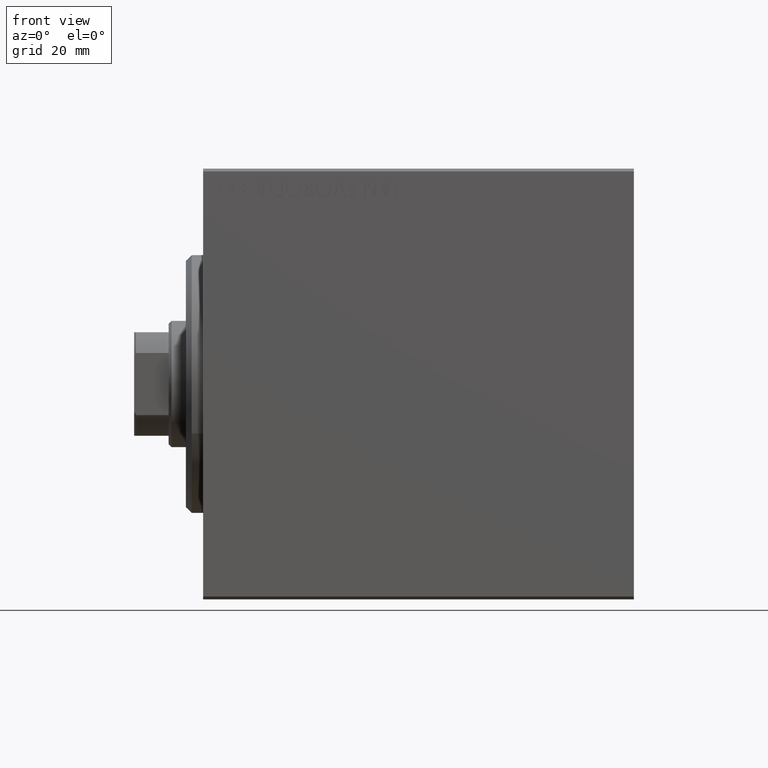
[diagram: clean part render]
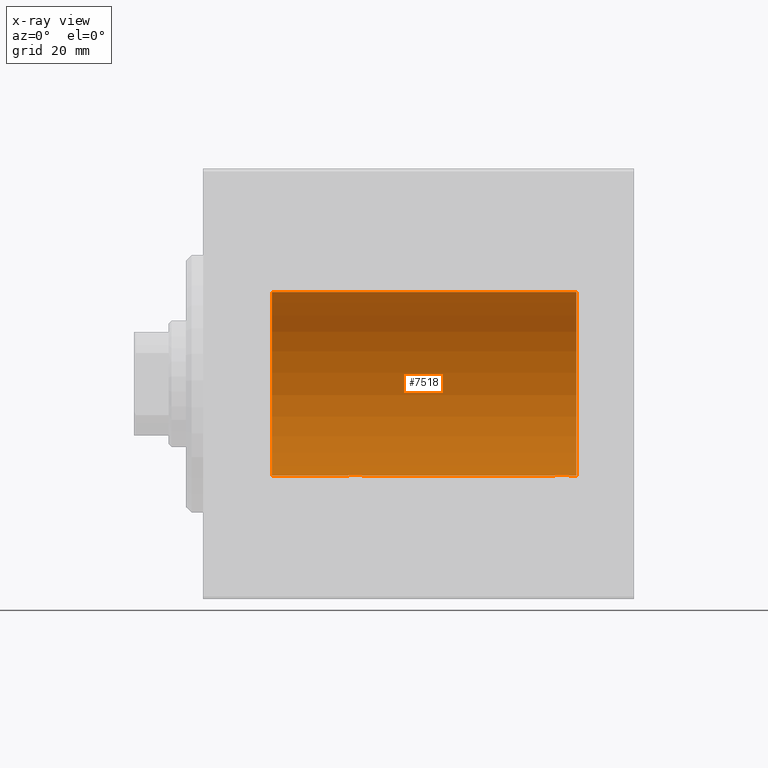
[diagram: x-ray — body ghosted, one internal face saturated and labeled with its STEP entity id]
A machine part, front view, then the same camera in x-ray: the body is ghosted and one INTERNAL B-rep face — a face not visible from any outside direction — is saturated and labeled: STEP entity #7518.
In plain terms, the highlighted cylindrical surface (partial cylindrical patch) has radius 16 mm, axis along (-1, -0, -0).
Its self-contained STEP definition (entity closure, byte-faithful):
#26 = CARTESIAN_POINT ( 'NONE',  ( 28.48690924832125759, 0.2632563459770846381, -15.99834873924246814 ) ) ;
#37 = ORIENTED_EDGE ( 'NONE', *, *, #7482, .T. ) ;
#222 = CARTESIAN_POINT ( 'NONE',  ( 60.60241129944407845, 0.6452446332038094257, -15.98744362947834929 ) ) ;
#434 = CARTESIAN_POINT ( 'NONE',  ( 60.76431901501735666, 1.002241074716276437, -15.96895041604536125 ) ) ;
#659 = EDGE_CURVE ( 'NONE', #16221, #37139, #8265, .T. ) ;
#693 = CIRCLE ( 'NONE', #25565, 16.00000000000000000 ) ;
#805 = ORIENTED_EDGE ( 'NONE', *, *, #23228, .F. ) ;
#2175 = DIRECTION ( 'NONE',  ( -1.000000000000000000, -0.000000000000000000, -0.000000000000000000 ) ) ;
#2396 = LINE ( 'NONE', #9743, #30644 ) ;
#2463 = CARTESIAN_POINT ( 'NONE',  ( 24.56388673317935556, 0.5181437283162043661, -15.99211983514074653 ) ) ;
#2921 = CARTESIAN_POINT ( 'NONE',  ( 24.70286585251780664, 0.8874076679346751817, -15.97583181162461408 ) ) ;
#3257 = B_SPLINE_CURVE_WITH_KNOTS ( 'NONE', 3,
 ( #6461, #30698, #20055, #40920, #222, #13578, #434, #27151, #26931, #13793, #41140, #10664, #40483, #20702, #3776, #7327, #20915, #33610, #34477, #17586, #10012, #21568, #18018, #4654, #38670, #4210, #21355, #7976, #19061, #8793 ),
 .UNSPECIFIED., .F., .F.,
 ( 4, 2, 2, 2, 2, 2, 2, 2, 2, 2, 2, 2, 2, 2, 4 ),
 ( 1.991932713717143819E-18, 0.0003911894522871088727, 0.0007823789045742156854, 0.001173568356861322227, 0.001564757809148428769, 0.002347136713722657465, 0.003129515618296885727, 0.003520705070584010266, 0.003911894522871134372, 0.004303083975158258911, 0.004694273427445384318, 0.005085462879732508858, 0.005476652332019634264, 0.005867841784306758804, 0.006259031236593884211 ),
 .UNSPECIFIED. ) ;
#3776 = CARTESIAN_POINT ( 'NONE',  ( 62.76251583007899626, 1.987008272775793838, -15.87616016863256263 ) ) ;
#4210 = CARTESIAN_POINT ( 'NONE',  ( 64.39783726498897920, 0.6445079780200581032, -15.98747331501412816 ) ) ;
#4654 = CARTESIAN_POINT ( 'NONE',  ( 64.23482670674952999, 1.003662148334373283, -15.96885838080210362 ) ) ;
#4727 = DIRECTION ( 'NONE',  ( -1.000000000000000000, -0.000000000000000000, -0.000000000000000000 ) ) ;
#5064 = CARTESIAN_POINT ( 'NONE',  ( 11.99999999999999645, 0.000000000000000000, 0.000000000000000000 ) ) ;
#5148 = DIRECTION ( 'NONE',  ( -1.000000000000000000, 0.000000000000000000, 0.000000000000000000 ) ) ;
#5516 = AXIS2_PLACEMENT_3D ( 'NONE', #5064, #18654, #31316 ) ;
#6358 = VERTEX_POINT ( 'NONE', #19660 ) ;
#6461 = CARTESIAN_POINT ( 'NONE',  ( 60.49999999999999289, -9.573340169032840992E-15, -16.00000000000000000 ) ) ;
#7327 = CARTESIAN_POINT ( 'NONE',  ( 63.01913097710111344, 1.935876924222080797, -15.88247600692093187 ) ) ;
#7340 = CARTESIAN_POINT ( 'NONE',  ( 28.49999999999999645, 1.959434851238818770E-15, -16.00000000000000000 ) ) ;
#7482 = EDGE_CURVE ( 'NONE', #6358, #34567, #3257, .T. ) ;
#7518 = ADVANCED_FACE ( 'NONE', ( #23464 ), #33246, .F. ) ;
#7656 = ORIENTED_EDGE ( 'NONE', *, *, #40326, .F. ) ;
#7976 = CARTESIAN_POINT ( 'NONE',  ( 64.48690924832126825, 0.2632563459770859149, -15.99834873924246459 ) ) ;
#8220 = AXIS2_PLACEMENT_3D ( 'NONE', #25896, #33688, #29448 ) ;
#8265 = LINE ( 'NONE', #22280, #41447 ) ;
#8793 = CARTESIAN_POINT ( 'NONE',  ( 64.50000000000000000, 1.959434851248285101E-15, -16.00000000000000000 ) ) ;
#9581 = CARTESIAN_POINT ( 'NONE',  ( 24.50000000000000000, 0.1322838750249235862, -16.00000000000000355 ) ) ;
#9743 = CARTESIAN_POINT ( 'NONE',  ( 65.00000000000000000, 1.959434878635765131E-15, -16.00000000000000000 ) ) ;
#9841 = CARTESIAN_POINT ( 'NONE',  ( 11.99999999999999645, 1.959434878635765131E-15, -16.00000000000000000 ) ) ;
#10012 = CARTESIAN_POINT ( 'NONE',  ( 63.82075824828930877, 1.507649250492136606, -15.92908549642226745 ) ) ;
#10245 = CARTESIAN_POINT ( 'NONE',  ( 28.00737160312429452, 1.321075116345887368, -15.94564302722882587 ) ) ;
#10664 = CARTESIAN_POINT ( 'NONE',  ( 61.97468243540594557, 1.947280337074165368, -15.88137861827787134 ) ) ;
#12703 = CARTESIAN_POINT ( 'NONE',  ( 25.97468243540595978, 1.947280337074166923, -15.88137861827786779 ) ) ;
#13578 = CARTESIAN_POINT ( 'NONE',  ( 60.70286585251778178, 0.8874076679346716290, -15.97583181162461052 ) ) ;
#13793 = CARTESIAN_POINT ( 'NONE',  ( 61.27043888260216420, 1.598790766515151063, -15.92099550861380841 ) ) ;
#14115 = VERTEX_POINT ( 'NONE', #22819 ) ;
#14709 = VECTOR ( 'NONE', #18575, 1000.000000000000000 ) ;
#15383 = DIRECTION ( 'NONE',  ( 0.000000000000000000, 0.000000000000000000, 1.000000000000000000 ) ) ;
#16221 = VERTEX_POINT ( 'NONE', #34058 ) ;
#16281 = CARTESIAN_POINT ( 'NONE',  ( 24.50000000000000000, -2.103178745110437193E-15, -16.00000000000000000 ) ) ;
#16506 = CARTESIAN_POINT ( 'NONE',  ( 24.90948495147901554, 1.219564485341768645, -15.95382484008323409 ) ) ;
#17010 = EDGE_CURVE ( 'NONE', #14115, #20260, #28162, .T. ) ;
#17533 = EDGE_LOOP ( 'NONE', ( #25108, #34188, #36008, #42782, #805, #31934, #7656, #37 ) ) ;
#17586 = CARTESIAN_POINT ( 'NONE',  ( 63.71967657442274913, 1.590393755196015002, -15.92092783521423272 ) ) ;
#18018 = CARTESIAN_POINT ( 'NONE',  ( 64.09001528100125711, 1.220169175415124929, -15.95377581882983975 ) ) ;
#18158 = CARTESIAN_POINT ( 'NONE',  ( 28.49999999999999645, 1.959434851238818770E-15, -16.00000000000000000 ) ) ;
#18575 = DIRECTION ( 'NONE',  ( -1.000000000000000000, -0.000000000000000000, -0.000000000000000000 ) ) ;
#18654 = DIRECTION ( 'NONE',  ( -1.000000000000000000, 0.000000000000000000, 0.000000000000000000 ) ) ;
#19061 = CARTESIAN_POINT ( 'NONE',  ( 64.49999999999997158, 0.1305944228192322254, -15.99999999999999289 ) ) ;
#19404 = CARTESIAN_POINT ( 'NONE',  ( 24.76431901501738864, 1.002241074716281544, -15.96895041604536125 ) ) ;
#19660 = CARTESIAN_POINT ( 'NONE',  ( 60.49999999999999289, -9.573340169032840992E-15, -16.00000000000000000 ) ) ;
#19764 = DIRECTION ( 'NONE',  ( -1.000000000000000000, -0.000000000000000000, -0.000000000000000000 ) ) ;
#20055 = CARTESIAN_POINT ( 'NONE',  ( 60.51299475991586263, 0.2623312429553253389, -15.99836091803360283 ) ) ;
#20208 = VERTEX_POINT ( 'NONE', #23958 ) ;
#20260 = VERTEX_POINT ( 'NONE', #18158 ) ;
#20504 = CARTESIAN_POINT ( 'NONE',  ( 28.23482670674955486, 1.003662148334367954, -15.96885838080211073 ) ) ;
#20702 = CARTESIAN_POINT ( 'NONE',  ( 62.62985308350498315, 2.000047931387145983, -15.87450182760079898 ) ) ;
#20915 = CARTESIAN_POINT ( 'NONE',  ( 63.14386968033014114, 1.898058445420889750, -15.88709929148890510 ) ) ;
#21355 = CARTESIAN_POINT ( 'NONE',  ( 64.43569052926127938, 0.5198215460038770885, -15.99206840425679310 ) ) ;
#21568 = CARTESIAN_POINT ( 'NONE',  ( 64.00737160312429808, 1.321075116345888256, -15.94564302722882232 ) ) ;
#21937 = EDGE_CURVE ( 'NONE', #20208, #34567, #37292, .T. ) ;
#22280 = CARTESIAN_POINT ( 'NONE',  ( 65.00000000000000000, 0.000000000000000000, 16.00000000000000000 ) ) ;
#22503 = CARTESIAN_POINT ( 'NONE',  ( 24.99389287531754178, 1.322357532253823909, -15.94553003295877325 ) ) ;
#22819 = CARTESIAN_POINT ( 'NONE',  ( 24.50000000000000000, -2.103178745110437193E-15, -16.00000000000000000 ) ) ;
#23175 = CARTESIAN_POINT ( 'NONE',  ( 27.01913097710113121, 1.935876924222081907, -15.88247600692093187 ) ) ;
#23228 = EDGE_CURVE ( 'NONE', #14115, #30967, #32989, .T. ) ;
#23310 = CARTESIAN_POINT ( 'NONE',  ( 65.00000000000000000, 1.959434878635765131E-15, -16.00000000000000000 ) ) ;
#23401 = CARTESIAN_POINT ( 'NONE',  ( 27.71967657442277400, 1.590393755196007008, -15.92092783521424337 ) ) ;
#23464 = FACE_OUTER_BOUND ( 'NONE', #17533, .T. ) ;
#23619 = CARTESIAN_POINT ( 'NONE',  ( 28.49999999999999645, 0.1305944228192321699, -16.00000000000000000 ) ) ;
#23958 = CARTESIAN_POINT ( 'NONE',  ( 65.00000000000000000, 1.959434878635765131E-15, -16.00000000000000000 ) ) ;
#25108 = ORIENTED_EDGE ( 'NONE', *, *, #21937, .F. ) ;
#25565 = AXIS2_PLACEMENT_3D ( 'NONE', #39595, #5148, #15383 ) ;
#25630 = CARTESIAN_POINT ( 'NONE',  ( 27.50311247035038775, 1.735145127817748323, -15.90580292899658410 ) ) ;
#25724 = EDGE_CURVE ( 'NONE', #37139, #30967, #31813, .T. ) ;
#25896 = CARTESIAN_POINT ( 'NONE',  ( 65.00000000000000000, 0.000000000000000000, 0.000000000000000000 ) ) ;
#26286 = CARTESIAN_POINT ( 'NONE',  ( 26.23808537237744787, 1.999903730784159617, -15.87451999516785861 ) ) ;
#26931 = CARTESIAN_POINT ( 'NONE',  ( 60.99389287531753467, 1.322357532253821688, -15.94553003295876970 ) ) ;
#27151 = CARTESIAN_POINT ( 'NONE',  ( 60.90948495147899422, 1.219564485341763760, -15.95382484008323054 ) ) ;
#27169 = CARTESIAN_POINT ( 'NONE',  ( 28.09001528100123224, 1.220169175415120932, -15.95377581882983797 ) ) ;
#27480 = VECTOR ( 'NONE', #19764, 1000.000000000000000 ) ;
#27595 = CARTESIAN_POINT ( 'NONE',  ( 28.29749928605040665, 0.8866640484200122296, -15.97587307151818514 ) ) ;
#28162 = B_SPLINE_CURVE_WITH_KNOTS ( 'NONE', 3,
 ( #16281, #9581, #33411, #2463, #32731, #2921, #19404, #16506, #22503, #29613, #43404, #12703, #26286, #39832, #29845, #23175, #36731, #30061, #25630, #23401, #37818, #10245, #27169, #20504, #27595, #43849, #34064, #26, #23619, #7340 ),
 .UNSPECIFIED., .F., .F.,
 ( 4, 2, 2, 2, 2, 2, 2, 2, 2, 2, 2, 2, 2, 2, 4 ),
 ( 6.061338176617876434E-19, 0.0003911894522871146732, 0.0007823789045742288043, 0.001173568356861343261, 0.001564757809148457609, 0.002347136713722686955, 0.003129515618296916518, 0.003520705070584036721, 0.003911894522871156923, 0.004303083975158277993, 0.004694273427445398196, 0.005085462879732518399, 0.005476652332019638601, 0.005867841784306759671, 0.006259031236593879007 ),
 .UNSPECIFIED. ) ;
#29257 = CARTESIAN_POINT ( 'NONE',  ( 11.99999999999999645, 0.000000000000000000, 16.00000000000000000 ) ) ;
#29448 = DIRECTION ( 'NONE',  ( 0.000000000000000000, 0.000000000000000000, 1.000000000000000000 ) ) ;
#29613 = CARTESIAN_POINT ( 'NONE',  ( 25.27043888260214999, 1.598790766515152173, -15.92099550861380486 ) ) ;
#29845 = CARTESIAN_POINT ( 'NONE',  ( 26.76251583007899271, 1.987008272775795614, -15.87616016863256263 ) ) ;
#30061 = CARTESIAN_POINT ( 'NONE',  ( 27.38617757057268420, 1.797743958659262731, -15.89876304682111652 ) ) ;
#30644 = VECTOR ( 'NONE', #2175, 1000.000000000000000 ) ;
#30698 = CARTESIAN_POINT ( 'NONE',  ( 60.50000000000000000, 0.1322838750249188400, -15.99999999999999645 ) ) ;
#30967 = VERTEX_POINT ( 'NONE', #9841 ) ;
#31316 = DIRECTION ( 'NONE',  ( 0.000000000000000000, 0.000000000000000000, 1.000000000000000000 ) ) ;
#31813 = CIRCLE ( 'NONE', #5516, 16.00000000000000000 ) ;
#31931 = EDGE_CURVE ( 'NONE', #16221, #20208, #693, .T. ) ;
#31934 = ORIENTED_EDGE ( 'NONE', *, *, #17010, .T. ) ;
#32731 = CARTESIAN_POINT ( 'NONE',  ( 24.60241129944407135, 0.6452446332038127563, -15.98744362947834574 ) ) ;
#32989 = LINE ( 'NONE', #35456, #14709 ) ;
#33246 = CYLINDRICAL_SURFACE ( 'NONE', #8220, 16.00000000000000000 ) ;
#33411 = CARTESIAN_POINT ( 'NONE',  ( 24.51299475991587329, 0.2623312429553279479, -15.99836091803360105 ) ) ;
#33610 = CARTESIAN_POINT ( 'NONE',  ( 63.38617757057270552, 1.797743958659260510, -15.89876304682112362 ) ) ;
#33688 = DIRECTION ( 'NONE',  ( -1.000000000000000000, -0.000000000000000000, -0.000000000000000000 ) ) ;
#34058 = CARTESIAN_POINT ( 'NONE',  ( 65.00000000000000000, 0.000000000000000000, 16.00000000000000000 ) ) ;
#34064 = CARTESIAN_POINT ( 'NONE',  ( 28.43569052926130070, 0.5198215460038754232, -15.99206840425679310 ) ) ;
#34188 = ORIENTED_EDGE ( 'NONE', *, *, #31931, .F. ) ;
#34477 = CARTESIAN_POINT ( 'NONE',  ( 63.50311247035038065, 1.735145127817755650, -15.90580292899658055 ) ) ;
#34567 = VERTEX_POINT ( 'NONE', #43607 ) ;
#35456 = CARTESIAN_POINT ( 'NONE',  ( 65.00000000000000000, 1.959434878635765131E-15, -16.00000000000000000 ) ) ;
#36008 = ORIENTED_EDGE ( 'NONE', *, *, #659, .T. ) ;
#36731 = CARTESIAN_POINT ( 'NONE',  ( 27.14386968033013758, 1.898058445420891305, -15.88709929148890510 ) ) ;
#37139 = VERTEX_POINT ( 'NONE', #29257 ) ;
#37292 = LINE ( 'NONE', #23310, #27480 ) ;
#37818 = CARTESIAN_POINT ( 'NONE',  ( 27.82075824828932653, 1.507649250492136606, -15.92908549642227101 ) ) ;
#38670 = CARTESIAN_POINT ( 'NONE',  ( 64.29749928605036757, 0.8866640484200128958, -15.97587307151817804 ) ) ;
#39595 = CARTESIAN_POINT ( 'NONE',  ( 65.00000000000000000, 0.000000000000000000, 0.000000000000000000 ) ) ;
#39832 = CARTESIAN_POINT ( 'NONE',  ( 26.62985308350499025, 2.000047931387146871, -15.87450182760080253 ) ) ;
#40326 = EDGE_CURVE ( 'NONE', #6358, #20260, #2396, .T. ) ;
#40483 = CARTESIAN_POINT ( 'NONE',  ( 62.23808537237743366, 1.999903730784159173, -15.87451999516785861 ) ) ;
#40920 = CARTESIAN_POINT ( 'NONE',  ( 60.56388673317934490, 0.5181437283162021457, -15.99211983514074653 ) ) ;
#41140 = CARTESIAN_POINT ( 'NONE',  ( 61.49340818440418843, 1.747750603376301060, -15.90457341008072767 ) ) ;
#41447 = VECTOR ( 'NONE', #4727, 1000.000000000000000 ) ;
#42782 = ORIENTED_EDGE ( 'NONE', *, *, #25724, .T. ) ;
#43404 = CARTESIAN_POINT ( 'NONE',  ( 25.49340818440419199, 1.747750603376302614, -15.90457341008072412 ) ) ;
#43607 = CARTESIAN_POINT ( 'NONE',  ( 64.50000000000000000, 1.959434851248285101E-15, -16.00000000000000000 ) ) ;
#43849 = CARTESIAN_POINT ( 'NONE',  ( 28.39783726498895433, 0.6445079780200565489, -15.98747331501412106 ) ) ;